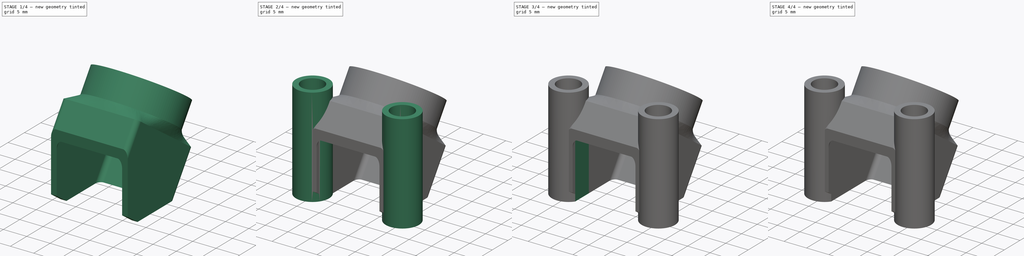
[diagram: build sequence overview — one tinted view per stage of 4, left to right]
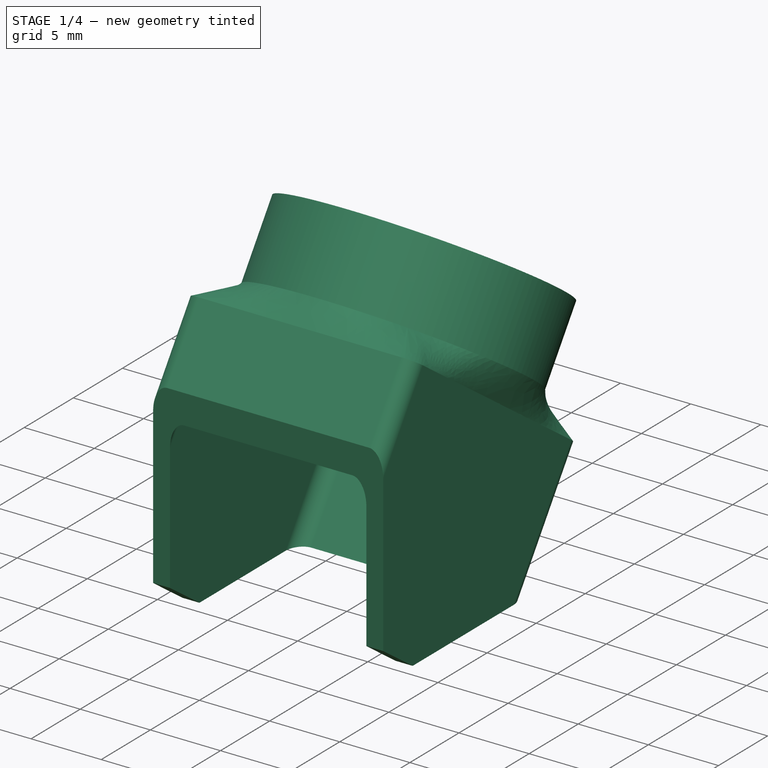
[diagram: stage 1 of 4 — iso view after this stage's code; geometry added in this stage tinted green]
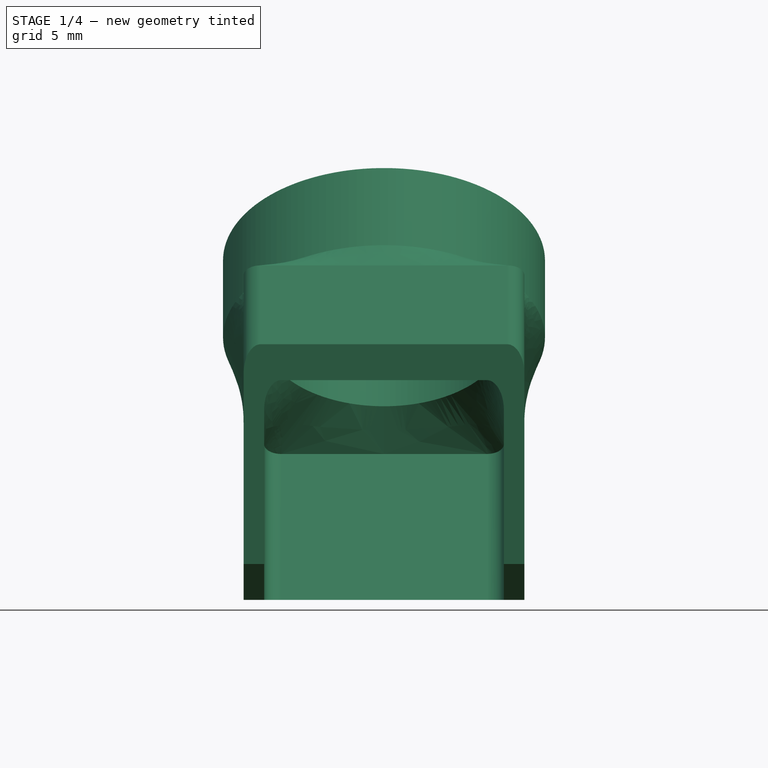
[diagram: stage 1 of 4 — front view after this stage's code; geometry added in this stage tinted green]
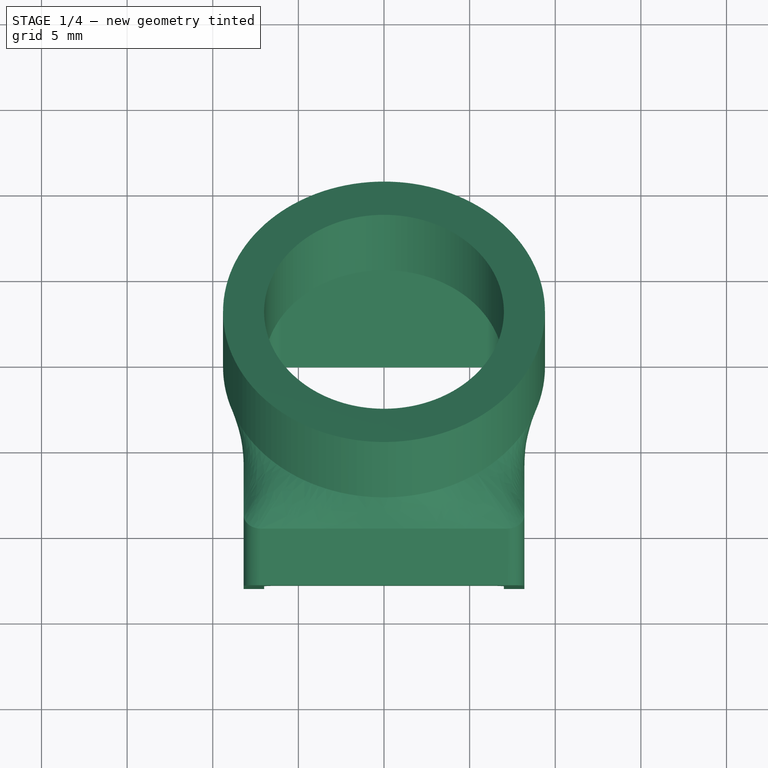
[diagram: stage 1 of 4 — top view after this stage's code; geometry added in this stage tinted green]
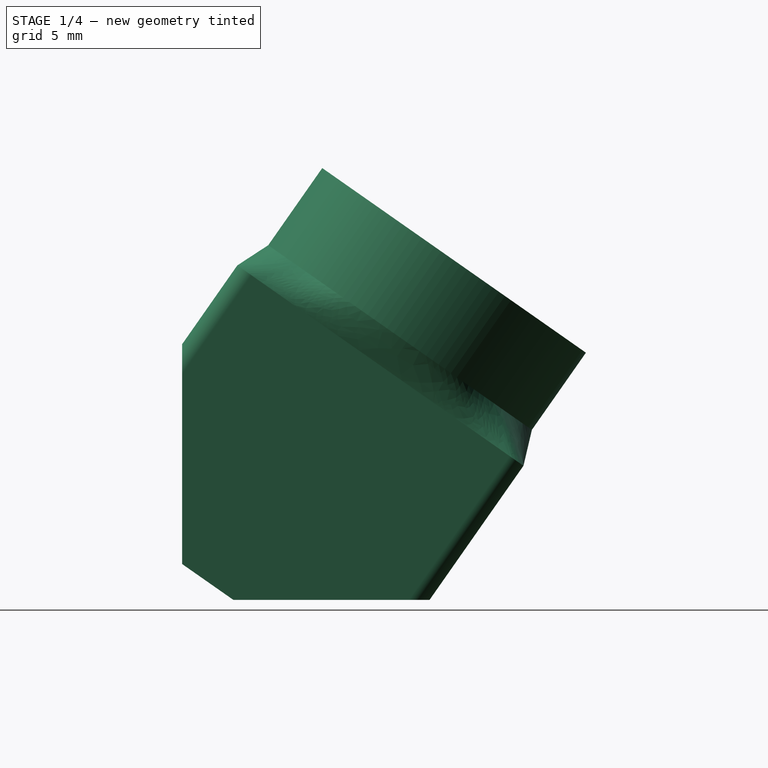
[diagram: stage 1 of 4 — right view after this stage's code; geometry added in this stage tinted green]
FCSTD DOCUMENT  (FreeCAD 0.20R29177 +426 (Git))
Label: mount_cam_nano90_M8lens
License: All rights reserved
LicenseURL: http://en.wikipedia.org/wiki/All_rights_reserved
objects: Sketcher::SketchObject×13, PartDesign::Pocket×6, PartDesign::AdditiveLoft×1, PartDesign::Pad×1, PartDesign::Chamfer×1, PartDesign::Body×1, Spreadsheet::Sheet×1
note: 32 computed .brp shape members not serialized (recipe doc carries the construction recipe); baked Part::Feature solids carry a one-line shape summary decoded from their .brp

FEATURE [Sketcher::SketchObject] Sketch  label="base"
  FullyConstrained = true
  MapMode = 5
  Support = -> [XY_Plane]
  sketch-geometry (2):
    g0: GeomPoint X=10 Y=0 Z=0
    g1: GeomPoint X=-10 Y=0 Z=0
  constraints (3):
    c: PointOnObject(g0,g-1)
    c: DistanceX(g1,g0) = 20
    c: Symmetric(g0,g1,g-1)
FEATURE [Sketcher::SketchObject] Sketch001  label="cam_dimensions"
  FullyConstrained = false
  MapMode = 5
  Placement = pos=(0,0,0) rot=(0.57735,0.57735,0.57735;2.0944rad)
  Support = -> [YZ_Plane]
  sketch-geometry (24):
    g0: LineSegment StartX=7.39443 StartY=22.4521 StartZ=0 EndX=17.2243 EndY=15.5692 EndZ=0
    g1: LineSegment StartX=-5.3874 StartY=9.42812 StartZ=0 EndX=9.35733 EndY=-0.896252 EndZ=0
    g2: LineSegment StartX=9.35733 StartY=-0.896252 StartZ=0 EndX=15.3799 EndY=7.70484 EndZ=0
    g3: LineSegment StartX=15.3799 StartY=7.70484 StartZ=0 EndX=0.635149 EndY=18.0292 EndZ=0
    g4: LineSegment StartX=0.635149 StartY=18.0292 StartZ=0 EndX=-5.3874 EndY=9.42812 EndZ=0
    g5: LineSegment StartX=8.00752 StartY=12.867 StartZ=0 EndX=12.3093 EndY=19.0107 EndZ=0
    g6: Circle CenterX=6 CenterY=10 CenterZ=0 NormalX=0 NormalY=0 NormalZ=1 AngleXU=0 Radius=1
    g7: LineSegment StartX=-20.7098 StartY=25 StartZ=0 EndX=19.2902 EndY=25 EndZ=0
    g8: LineSegment StartX=7.968 StartY=23.2713 StartZ=0 EndX=17.7978 EndY=16.3884 EndZ=0
    g9: LineSegment StartX=1.20873 StartY=18.8484 StartZ=0 EndX=15.9535 EndY=8.524 EndZ=0
    g10: GeomPoint X=15.9535 Y=8.524 Z=0
    g11: GeomPoint X=1.20873 Y=18.8484 Z=0
    g12: GeomPoint X=17.7978 Y=16.3884 Z=0
    g13: GeomPoint X=7.968 Y=23.2713 Z=0
    g14: LineSegment StartX=-8.04477 StartY=5.63301 StartZ=0 EndX=6.69997 EndY=-4.69137 EndZ=0
    g15: LineSegment StartX=9.35733 StartY=-0.896252 StartZ=0 EndX=6.69997 EndY=-4.69137 EndZ=0
    g16: GeomPoint X=6.69997 Y=-4.69137 Z=0
    g17: GeomPoint X=6.69997 Y=-4.69137 Z=0
    g18: GeomPoint X=-8.04477 Y=5.63301 Z=0
    g19: GeomPoint X=6 Y=10 Z=0
    g20: GeomPoint X=12.3093 Y=19.0107 Z=0
    g21: LineSegment StartX=4.81333 StartY=18.7659 StartZ=0 EndX=14.6432 EndY=11.883 EndZ=0
    g22: GeomPoint X=14.6432 Y=11.883 Z=0
    g23: GeomPoint X=4.81333 Y=18.7659 Z=0
  constraints (52):
    c: Coincident(g2,g1)
    c: Coincident(g3,g2)
    c: Coincident(g4,g3)
    c: Coincident(g4,g1)
    c: Perpendicular(g2,g3)
    c: Perpendicular(g1,g4)
    c: Perpendicular(g2,g1)
    c: Distance(g1) = 18
    c: Distance(g2) = 10.5
    c: Parallel(g3,g0)
    c: Perpendicular(g0,g5)
    c: Symmetric(g0,g0,g5)
    c: Symmetric(g2,g3,g5)
    c: Radius(g6) = 1
    c: Distance(g6,g1) = 7
    c: Distance(g6,g0) = 11
    c: Distance(g6,g2) = 9
    c: Angle(g-1,g2) = 0.959931
    c: Horizontal(g7)
    c: Distance(g7,g-1) = 25
    c: DistanceX(g-1,g6) = 6
    c: DistanceY(g-1,g6) = 10
    c: Distance(g0) = 12
    c: Parallel(g9,g3)
    c: Parallel(g3,g8)
    c: Equal(g0,g8)
    c: Distance(g8,g5) = 6
    c: Distance(g0,g8) = 1
    c: Distance(g3,g9) = 1
    c: Equal(g9,g3)
    c: Distance(g9,g5) = 9
    c: Coincident(g10,g9)
    c: Coincident(g11,g9)
    c: Coincident(g12,g8)
    c: Coincident(g13,g8)
    c: PointOnObject(g-1,g14)
    c: Parallel(g14,g1)
    c: Equal(g1,g14)
    c: Coincident(g15,g1)
    c: Coincident(g15,g14)
    c: Perpendicular(g15,g1)
    c: Coincident(g16,g14)
    c: Coincident(g17,g14)
    c: Coincident(g18,g14)
    c: Coincident(g19,g6)
    c: Distance(g7) = 40
    c: Coincident(g20,g5)
    c: Equal(g21,g0)
    c: Symmetric(g21,g21,g5)
    c: Distance(g21,g9) = 2
    c: Coincident(g22,g21)
    c: Coincident(g23,g21)
FEATURE [Sketcher::SketchObject] Sketch002  label="lens_plane"
  AttachmentOffset = pos=(0,0,0) rot=(1,0,0;1.5708rad)
  ExternalGeometry = -> [Sketch001]
  FullyConstrained = true
  MapMode = 47
  Placement = pos=(-3.4e-15,7.968,23.2713) rot=(0,0.953717,-0.300706;3.14159rad)
  Support = -> [Sketch001]
  expr: Constraints[0] = 0.4 + <<parameters>>.lens_dia_mm / 2
  expr: Constraints[1] = 0.4 + <<parameters>>.lens_dia_mm / 2 + <<parameters>>.lens_wall_mm
  sketch-geometry (2):
    g0: Circle CenterX=0 CenterY=6 CenterZ=0 NormalX=0 NormalY=0 NormalZ=1 AngleXU=0 Radius=9.4
    g1: Circle CenterX=0 CenterY=6 CenterZ=0 NormalX=0 NormalY=0 NormalZ=1 AngleXU=0 Radius=7
  constraints (5):
    c: Radius(g1) = 7
    c: Radius(g0) = 9.4
    c: Coincident(g1,g0)
    c: PointOnObject(g0,g-2)
    c: Distance(g-1,g0) = 6
FEATURE [Sketcher::SketchObject] Sketch003  label="body_top_plane"
  ExternalGeometry = -> [Sketch001]
  FullyConstrained = true
  MapMode = 49
  Placement = pos=(-3.9e-15,1.20873,18.8484) rot=(-0.287968,0.287968,0.913318;1.66134rad)
  Support = -> [Sketch001]
  expr: Constraints[18] = <<parameters>>.body_w_mm + <<parameters>>.body_wall_mm * 2
  expr: Constraints[19] = <<parameters>>.body_h_mm + <<parameters>>.body_wall_mm * 2
  expr: Constraints[38] = <<parameters>>.body_h_mm
  expr: Constraints[39] = <<parameters>>.body_w_mm
  expr: Constraints[54] = <<parameters>>.body_h_mm / 2
  sketch-geometry (24):
    g0: ArcOfCircle CenterX=-0.2 CenterY=7.2 CenterZ=0 NormalX=0 NormalY=0 NormalZ=1 AngleXU=0 Radius=1 StartAngle=1.5708 EndAngle=3.14159
    g1: LineSegment StartX=-0.2 StartY=8.2 StartZ=0 EndX=18.2 EndY=8.2 EndZ=0
    g2: ArcOfCircle CenterX=18.2 CenterY=7.2 CenterZ=0 NormalX=0 NormalY=0 NormalZ=1 AngleXU=0 Radius=1 StartAngle=0 EndAngle=1.5708
    g3: LineSegment StartX=19.2 StartY=7.2 StartZ=0 EndX=19.2 EndY=-7.2 EndZ=0
    g4: ArcOfCircle CenterX=18.2 CenterY=-7.2 CenterZ=0 NormalX=0 NormalY=0 NormalZ=1 AngleXU=0 Radius=1 StartAngle=4.71239 EndAngle=6.28319
    g5: LineSegment StartX=18.2 StartY=-8.2 StartZ=0 EndX=-0.2 EndY=-8.2 EndZ=0
    g6: ArcOfCircle CenterX=-0.2 CenterY=-7.2 CenterZ=0 NormalX=0 NormalY=0 NormalZ=1 AngleXU=0 Radius=1 StartAngle=3.14159 EndAngle=4.71239
    g7: LineSegment StartX=-1.2 StartY=-7.2 StartZ=0 EndX=-1.2 EndY=7.2 EndZ=0
    g8: GeomPoint X=19.2 Y=-8.2 Z=0
    g9: ArcOfCircle CenterX=1 CenterY=6 CenterZ=0 NormalX=0 NormalY=0 NormalZ=1 AngleXU=0 Radius=1 StartAngle=1.5708 EndAngle=3.14159
    g10: LineSegment StartX=1 StartY=7 StartZ=0 EndX=17 EndY=7 EndZ=0
    g11: ArcOfCircle CenterX=17 CenterY=6 CenterZ=0 NormalX=0 NormalY=0 NormalZ=1 AngleXU=0 Radius=1 StartAngle=3e-16 EndAngle=1.5708
    g12: LineSegment StartX=18 StartY=6 StartZ=0 EndX=18 EndY=-6 EndZ=0
    g13: ArcOfCircle CenterX=17 CenterY=-6 CenterZ=0 NormalX=0 NormalY=0 NormalZ=1 AngleXU=0 Radius=1 StartAngle=4.71239 EndAngle=6.28319
    g14: LineSegment StartX=17 StartY=-7 StartZ=0 EndX=1 EndY=-7 EndZ=0
    g15: ArcOfCircle CenterX=1 CenterY=-6 CenterZ=0 NormalX=0 NormalY=0 NormalZ=1 AngleXU=0 Radius=1 StartAngle=3.14159 EndAngle=4.71239
    g16: LineSegment StartX=0 StartY=-6 StartZ=0 EndX=0 EndY=6 EndZ=0
    g17: GeomPoint X=18 Y=-7 Z=0
    g18: LineSegment StartX=17 StartY=6 StartZ=0 EndX=1 EndY=-6 EndZ=0
    g19: LineSegment StartX=1 StartY=6 StartZ=0 EndX=17 EndY=-6 EndZ=0
    g20: LineSegment StartX=-0.2 StartY=-7.2 StartZ=0 EndX=18.2 EndY=7.2 EndZ=0
    g21: LineSegment StartX=-0.2 StartY=7.2 StartZ=0 EndX=18.2 EndY=-7.2 EndZ=0
    g22: GeomPoint X=9 Y=0 Z=0
    g23: GeomPoint X=9 Y=0 Z=0
  constraints (55):
    c: Tangent(g0,g1) = 1.5708
    c: Tangent(g1,g2) = 1.5708
    c: Tangent(g2,g3) = 1.5708
    c: Tangent(g3,g4) = 1.5708
    c: Tangent(g4,g5) = 1.5708
    c: Tangent(g5,g6) = 1.5708
    c: Tangent(g6,g7) = 1.5708
    c: Tangent(g7,g0) = 1.5708
    c: Horizontal(g1)
    c: Horizontal(g5)
    c: Vertical(g3)
    c: Vertical(g7)
    c: Equal(g0,g2)
    c: Equal(g2,g4)
    c: Equal(g4,g6)
    c: PointOnObject(g8,g3)
    c: PointOnObject(g8,g5)
    c: Radius(g4) = 1
    c: Distance(g1,g4) = 16.4
    c: Distance(g3,g6) = 20.4
    c: Tangent(g9,g10) = 1.5708
    c: Tangent(g10,g11) = 1.5708
    c: Tangent(g11,g12) = 1.5708
    c: Tangent(g12,g13) = 1.5708
    c: Tangent(g13,g14) = 1.5708
    c: Tangent(g14,g15) = 1.5708
    c: Tangent(g15,g16) = 1.5708
    c: Tangent(g16,g9) = 1.5708
    c: Horizontal(g10)
    c: Horizontal(g14)
    c: Vertical(g12)
    c: Vertical(g16)
    c: Equal(g9,g11)
    c: Equal(g11,g13)
    c: Equal(g13,g15)
    c: PointOnObject(g17,g12)
    c: PointOnObject(g17,g14)
    c: Radius(g13) = 1
    c: Distance(g12,g15) = 18
    c: Distance(g13,g10) = 14
    c: Coincident(g18,g11)
    c: Coincident(g18,g15)
    c: Coincident(g19,g9)
    c: Coincident(g19,g13)
    c: Coincident(g20,g6)
    c: Coincident(g20,g2)
    c: Coincident(g21,g0)
    c: Coincident(g21,g4)
    c: PointOnObject(g22,g21)
    c: PointOnObject(g23,g18)
    c: PointOnObject(g22,g20)
    c: PointOnObject(g23,g19)
    c: Coincident(g22,g23)
    c: PointOnObject(g22,g-1)
    c: Distance(g-1,g22) = 9
FEATURE [Sketcher::SketchObject] Sketch004  label="body_bot_plane"
  ExternalGeometry = -> [Sketch001]
  FullyConstrained = true
  MapMode = 49
  Placement = pos=(-3e-15,-8.04477,5.63301) rot=(-0.287968,0.287968,0.913318;1.66134rad)
  Support = -> [Sketch001]
  expr: Constraints[18] = <<parameters>>.body_w_mm + <<parameters>>.body_wall_mm * 2
  expr: Constraints[19] = <<parameters>>.body_h_mm + <<parameters>>.body_wall_mm * 2
  expr: Constraints[38] = <<parameters>>.body_h_mm
  expr: Constraints[39] = <<parameters>>.body_w_mm
  expr: Constraints[54] = <<parameters>>.body_h_mm / 2
  sketch-geometry (24):
    g0: ArcOfCircle CenterX=-0.2 CenterY=7.2 CenterZ=0 NormalX=0 NormalY=0 NormalZ=1 AngleXU=0 Radius=1 StartAngle=1.5708 EndAngle=3.14159
    g1: LineSegment StartX=-0.2 StartY=8.2 StartZ=0 EndX=18.2 EndY=8.2 EndZ=0
    g2: ArcOfCircle CenterX=18.2 CenterY=7.2 CenterZ=0 NormalX=0 NormalY=0 NormalZ=1 AngleXU=0 Radius=1 StartAngle=2e-16 EndAngle=1.5708
    g3: LineSegment StartX=19.2 StartY=7.2 StartZ=0 EndX=19.2 EndY=-7.2 EndZ=0
    g4: ArcOfCircle CenterX=18.2 CenterY=-7.2 CenterZ=0 NormalX=0 NormalY=0 NormalZ=1 AngleXU=0 Radius=1 StartAngle=4.71239 EndAngle=6.28319
    g5: LineSegment StartX=18.2 StartY=-8.2 StartZ=0 EndX=-0.2 EndY=-8.2 EndZ=0
    g6: ArcOfCircle CenterX=-0.2 CenterY=-7.2 CenterZ=0 NormalX=0 NormalY=0 NormalZ=1 AngleXU=0 Radius=1 StartAngle=3.14159 EndAngle=4.71239
    g7: LineSegment StartX=-1.2 StartY=-7.2 StartZ=0 EndX=-1.2 EndY=7.2 EndZ=0
    g8: GeomPoint X=19.2 Y=-8.2 Z=0
    g9: ArcOfCircle CenterX=1 CenterY=6 CenterZ=0 NormalX=0 NormalY=0 NormalZ=1 AngleXU=0 Radius=1 StartAngle=1.5708 EndAngle=3.14159
    g10: LineSegment StartX=1 StartY=7 StartZ=0 EndX=17 EndY=7 EndZ=0
    g11: ArcOfCircle CenterX=17 CenterY=6 CenterZ=0 NormalX=0 NormalY=0 NormalZ=1 AngleXU=0 Radius=1 StartAngle=4e-16 EndAngle=1.5708
    g12: LineSegment StartX=18 StartY=6 StartZ=0 EndX=18 EndY=-6 EndZ=0
    g13: ArcOfCircle CenterX=17 CenterY=-6 CenterZ=0 NormalX=0 NormalY=0 NormalZ=1 AngleXU=0 Radius=1 StartAngle=4.71239 EndAngle=6.28319
    g14: LineSegment StartX=17 StartY=-7 StartZ=0 EndX=1 EndY=-7 EndZ=0
    g15: ArcOfCircle CenterX=1 CenterY=-6 CenterZ=0 NormalX=0 NormalY=0 NormalZ=1 AngleXU=0 Radius=1 StartAngle=3.14159 EndAngle=4.71239
    g16: LineSegment StartX=0 StartY=-6 StartZ=0 EndX=0 EndY=6 EndZ=0
    g17: GeomPoint X=18 Y=-7 Z=0
    g18: LineSegment StartX=17 StartY=-6 StartZ=0 EndX=1 EndY=6 EndZ=0
    g19: LineSegment StartX=-0.2 StartY=-7.2 StartZ=0 EndX=18.2 EndY=7.2 EndZ=0
    g20: LineSegment StartX=17 StartY=6 StartZ=0 EndX=1 EndY=-6 EndZ=0
    g21: LineSegment StartX=18.2 StartY=-7.2 StartZ=0 EndX=-0.2 EndY=7.2 EndZ=0
    g22: GeomPoint X=9 Y=0 Z=0
    g23: GeomPoint X=9 Y=0 Z=0
  constraints (55):
    c: Tangent(g0,g1) = 1.5708
    c: Tangent(g1,g2) = 1.5708
    c: Tangent(g2,g3) = 1.5708
    c: Tangent(g3,g4) = 1.5708
    c: Tangent(g4,g5) = 1.5708
    c: Tangent(g5,g6) = 1.5708
    c: Tangent(g6,g7) = 1.5708
    c: Tangent(g7,g0) = 1.5708
    c: Horizontal(g1)
    c: Horizontal(g5)
    c: Vertical(g3)
    c: Vertical(g7)
    c: Equal(g0,g2)
    c: Equal(g2,g4)
    c: Equal(g4,g6)
    c: PointOnObject(g8,g3)
    c: PointOnObject(g8,g5)
    c: Radius(g4) = 1
    c: Distance(g1,g4) = 16.4
    c: Distance(g3,g6) = 20.4
    c: Tangent(g9,g10) = 1.5708
    c: Tangent(g10,g11) = 1.5708
    c: Tangent(g11,g12) = 1.5708
    c: Tangent(g12,g13) = 1.5708
    c: Tangent(g13,g14) = 1.5708
    c: Tangent(g14,g15) = 1.5708
    c: Tangent(g15,g16) = 1.5708
    c: Tangent(g16,g9) = 1.5708
    c: Horizontal(g10)
    c: Horizontal(g14)
    c: Vertical(g12)
    c: Vertical(g16)
    c: Equal(g9,g11)
    c: Equal(g11,g13)
    c: Equal(g13,g15)
    c: PointOnObject(g17,g12)
    c: PointOnObject(g17,g14)
    c: Radius(g13) = 1
    c: Distance(g12,g15) = 18
    c: Distance(g13,g10) = 14
    c: Coincident(g18,g13)
    c: Coincident(g18,g9)
    c: Coincident(g19,g6)
    c: Coincident(g19,g2)
    c: Coincident(g20,g11)
    c: Coincident(g20,g15)
    c: Coincident(g21,g4)
    c: Coincident(g21,g0)
    c: PointOnObject(g22,g18)
    c: PointOnObject(g23,g19)
    c: PointOnObject(g23,g21)
    c: PointOnObject(g22,g20)
    c: Coincident(g23,g22)
    c: PointOnObject(g22,g-1)
    c: Distance(g22,g-1) = 9
FEATURE [Sketcher::SketchObject] Sketch005  label="lens_plate_2"
  FullyConstrained = true
  MapMode = 49
  Placement = pos=(-3.1e-15,4.81333,18.7659) rot=(-0.287968,0.287968,0.913318;1.66134rad)
  Support = -> [Sketch001]
  expr: Constraints[1] = 0.4 + <<parameters>>.lens_dia_mm / 2 + <<parameters>>.lens_wall_mm
  expr: Constraints[2] = 0.4 + <<parameters>>.lens_dia_mm / 2
  sketch-geometry (2):
    g0: Circle CenterX=6 CenterY=0 CenterZ=0 NormalX=0 NormalY=0 NormalZ=1 AngleXU=0 Radius=9.4
    g1: Circle CenterX=6 CenterY=0 CenterZ=0 NormalX=0 NormalY=0 NormalZ=1 AngleXU=0 Radius=7
  constraints (5):
    c: Coincident(g1,g0)
    c: Radius(g0) = 9.4
    c: Radius(g1) = 7
    c: PointOnObject(g0,g-1)
    c: Distance(g0,g-1) = 6
FEATURE [PartDesign::AdditiveLoft] AdditiveLoft
  Closed = false
  Placement = pos=(0,0,0) rot=(0.57735,0.57735,0.57735;2.0944rad)
  Profile = -> Sketch002
  Ruled = true
  Sections = -> [Sketch005,Sketch003,Sketch004]
FEATURE [Sketcher::SketchObject] Sketch006  label="mount_hole"
  ExternalGeometry = -> [Sketch001]
  FullyConstrained = true
  MapMode = 5
  Placement = pos=(-8.2,1e-16,-1.7e-15) rot=(0.57735,0.57735,-0.57735;4.18879rad)
  Support = -> [AdditiveLoft]
  sketch-geometry (1):
    g0: Circle CenterX=6 CenterY=-10 CenterZ=0 NormalX=0 NormalY=0 NormalZ=1 AngleXU=0 Radius=1
  constraints (2):
    c: Coincident(g0,g-3)
    c: Radius(g0) = 1
FEATURE [Sketcher::SketchObject] Sketch007
  FullyConstrained = true
  MapMode = 5
  Placement = pos=(0,0,0) rot=(0.57735,0.57735,0.57735;2.0944rad)
  Support = -> [YZ_Plane]
  sketch-geometry (6):
    g0: LineSegment StartX=20 StartY=0 StartZ=0 EndX=-3 EndY=0 EndZ=0
    g1: LineSegment StartX=-3 StartY=0 StartZ=0 EndX=-3 EndY=25 EndZ=0
    g2: LineSegment StartX=-3 StartY=25 StartZ=0 EndX=-23 EndY=25 EndZ=0
    g3: LineSegment StartX=-23 StartY=25 StartZ=0 EndX=-23 EndY=-10 EndZ=0
    g4: LineSegment StartX=-23 StartY=-10 StartZ=0 EndX=20 EndY=-10 EndZ=0
    g5: LineSegment StartX=20 StartY=-10 StartZ=0 EndX=20 EndY=0 EndZ=0
  constraints (18):
    c: PointOnObject(g0,g-1)
    c: PointOnObject(g0,g-1)
    c: Coincident(g0,g1)
    c: Vertical(g1)
    c: Coincident(g1,g2)
    c: Horizontal(g2)
    c: Coincident(g2,g3)
    c: Vertical(g3)
    c: Coincident(g3,g4)
    c: Horizontal(g4)
    c: Coincident(g4,g5)
    c: Coincident(g5,g0)
    c: Vertical(g5)
    c: Distance(g0,g-1) = 3
    c: Distance(g0,g4) = 10
    c: Distance(g-1,g0) = 20
    c: Distance(g0,g1) = 25
    c: Distance(g2) = 20
FEATURE [PartDesign::Pocket] Pocket001  label="cam_body_framing"
  BaseFeature = -> AdditiveLoft
  Direction = (-1,2e-16,-3e-16)
  Length = 5
  Length2 = 5
  Midplane = true
  Placement = pos=(0,0,0) rot=(0.57735,0.57735,0.57735;2.0944rad)
  Profile = -> Sketch007
  ReferenceAxis = -> Sketch007 [N_Axis]
  Type = 1
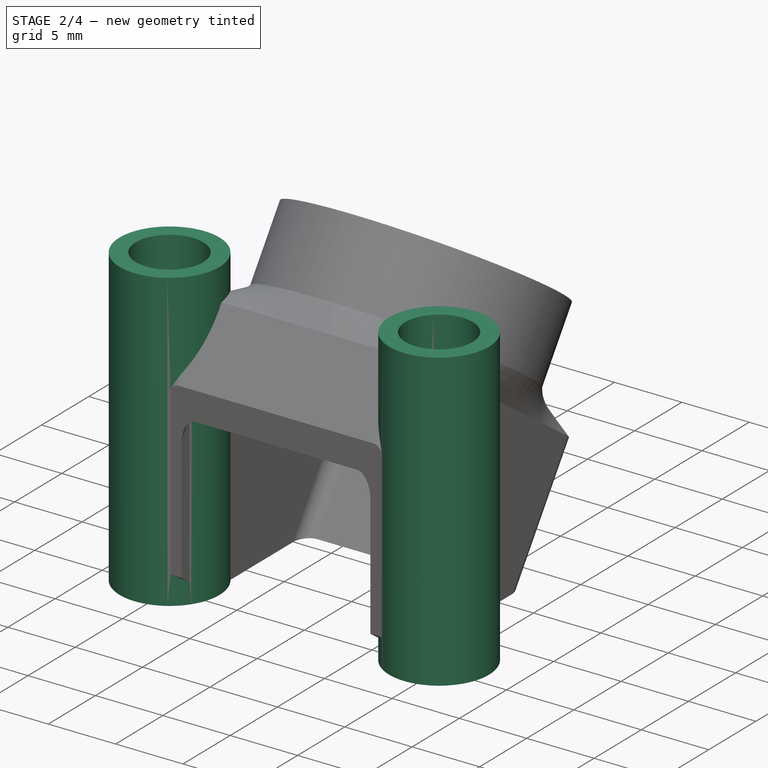
[diagram: stage 2 of 4 — iso view after this stage's code; geometry added in this stage tinted green]
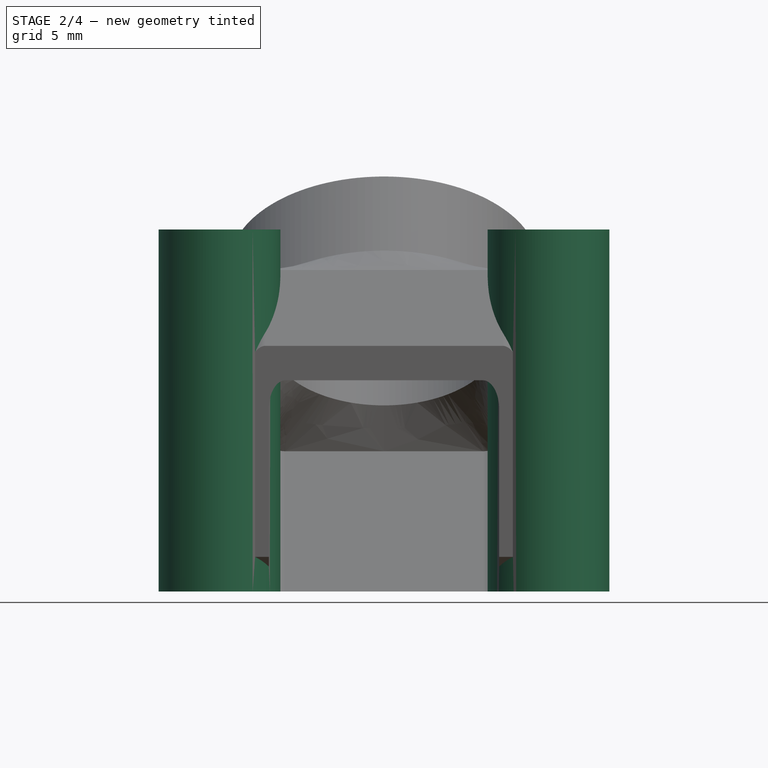
[diagram: stage 2 of 4 — front view after this stage's code; geometry added in this stage tinted green]
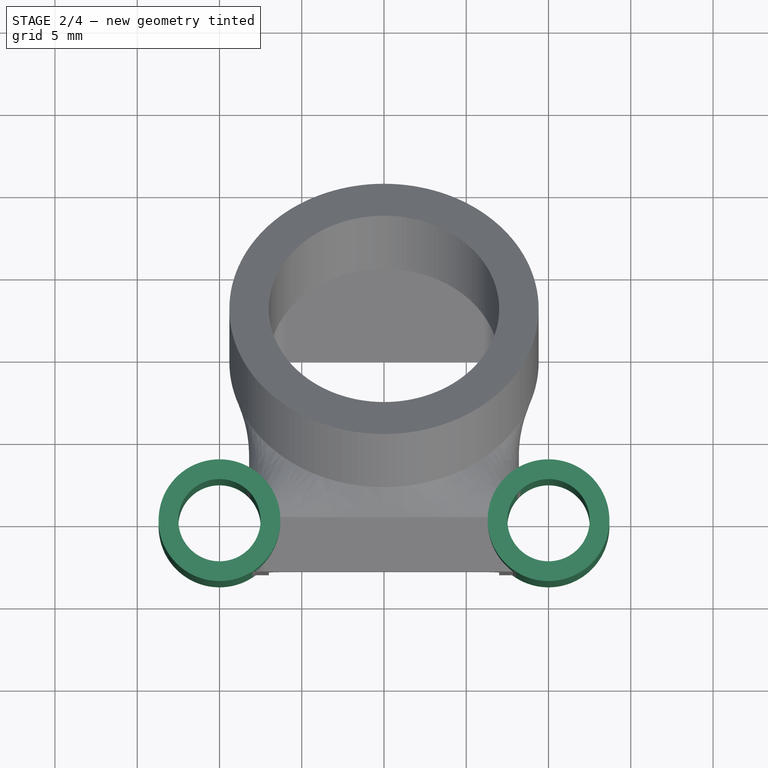
[diagram: stage 2 of 4 — top view after this stage's code; geometry added in this stage tinted green]
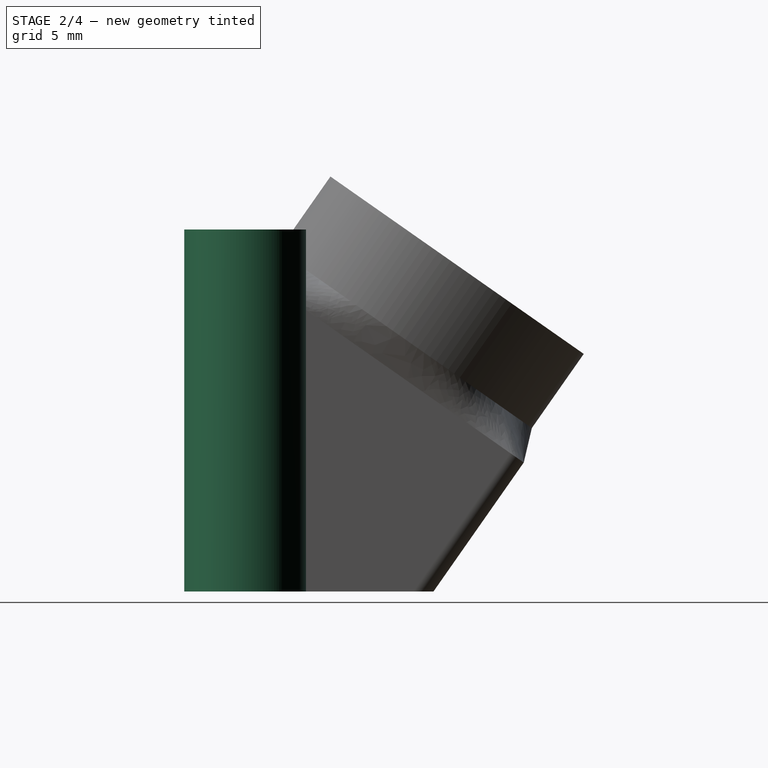
[diagram: stage 2 of 4 — right view after this stage's code; geometry added in this stage tinted green]
FEATURE [Sketcher::SketchObject] Sketch008
  ExternalGeometry = -> [Sketch,Pocket001]
  FullyConstrained = true
  MapMode = 5
  Support = -> [XY_Plane]
  sketch-geometry (4):
    g0: Circle CenterX=-10 CenterY=0 CenterZ=0 NormalX=0 NormalY=0 NormalZ=1 AngleXU=0 Radius=2.5
    g1: Circle CenterX=10 CenterY=0 CenterZ=0 NormalX=0 NormalY=0 NormalZ=1 AngleXU=0 Radius=2.5
    g2: Circle CenterX=-10 CenterY=0 CenterZ=0 NormalX=0 NormalY=0 NormalZ=1 AngleXU=0 Radius=3.7
    g3: Circle CenterX=10 CenterY=0 CenterZ=0 NormalX=0 NormalY=0 NormalZ=1 AngleXU=0 Radius=3.7
  constraints (8):
    c: Equal(g1,g0)
    c: Radius(g0) = 2.5
    c: Equal(g2,g3)
    c: Radius(g2) = 3.7
    c: Coincident(g-4,g3)
    c: Coincident(g-4,g1)
    c: Coincident(g-3,g2)
    c: Coincident(g-3,g0)
FEATURE [PartDesign::Pad] Pad  label="stand_mounts"
  BaseFeature = -> Pocket001
  Direction = (0,0,1)
  Length = 22
  Length2 = 10
  Placement = pos=(0,0,0) rot=(0.57735,0.57735,0.57735;2.0944rad)
  Profile = -> Sketch008
  ReferenceAxis = -> Sketch008 [N_Axis]
  Type = 0
FEATURE [Sketcher::SketchObject] Sketch009
  ExternalGeometry = -> [Sketch,Pad]
  FullyConstrained = false
  MapMode = 5
  Placement = pos=(0,0,0) rot=(0.707107,0.707107,0;3.14159rad)
  Support = -> [Pad]
  sketch-geometry (2):
    g0: Circle CenterX=1.8e-15 CenterY=-10 CenterZ=0 NormalX=0 NormalY=0 NormalZ=1 AngleXU=0 Radius=2.5
    g1: Circle CenterX=4.4e-15 CenterY=10 CenterZ=0 NormalX=0 NormalY=0 NormalZ=1 AngleXU=0 Radius=2.5
  constraints (1):
    c: Equal(g0,g-7)
FEATURE [PartDesign::Pocket] Pocket  label="stand_mounts_cleanup"
  BaseFeature = -> Pad
  Direction = (0,-1e-16,1)
  Length = 5
  Length2 = 5
  Placement = pos=(0,0,0) rot=(0.57735,0.57735,0.57735;2.0944rad)
  Profile = -> Sketch009
  ReferenceAxis = -> Sketch009 [N_Axis]
  Type = 1
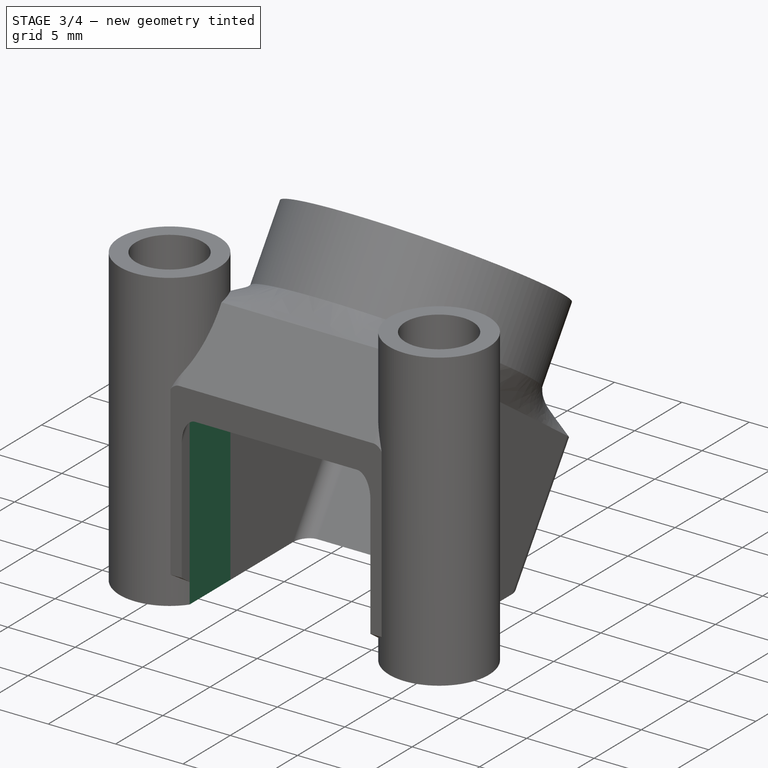
[diagram: stage 3 of 4 — iso view after this stage's code; geometry added in this stage tinted green]
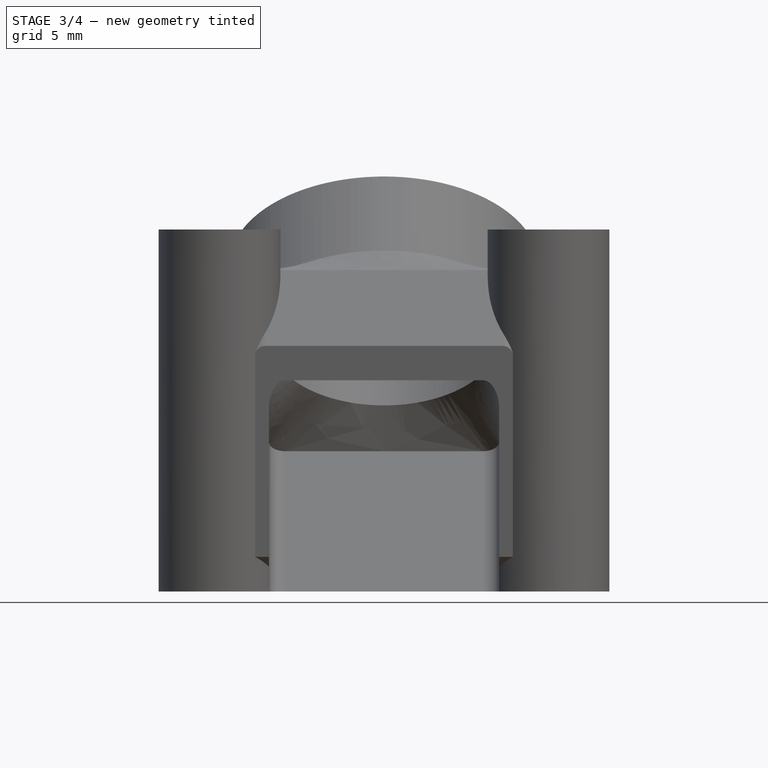
[diagram: stage 3 of 4 — front view after this stage's code; geometry added in this stage tinted green]
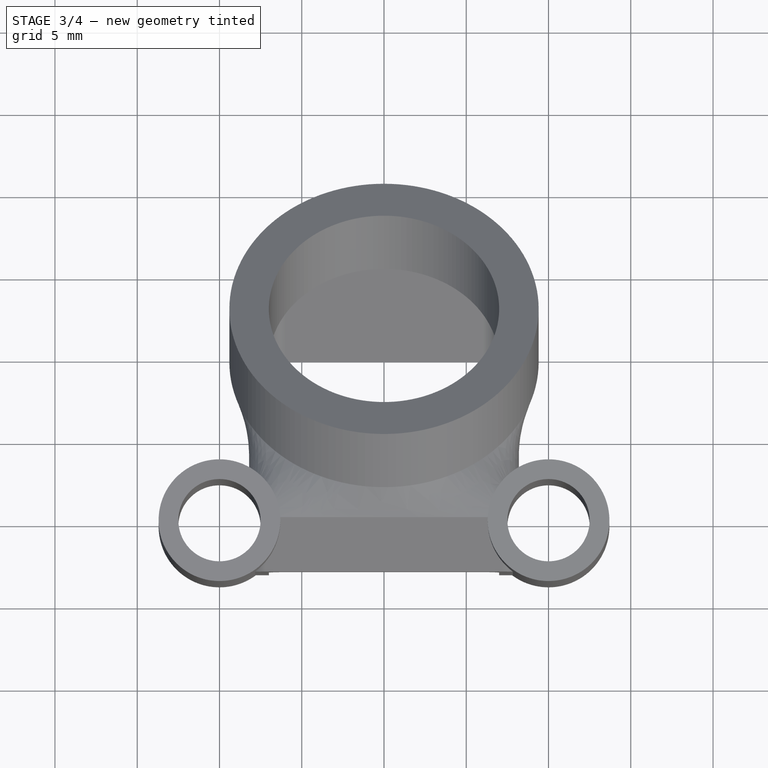
[diagram: stage 3 of 4 — top view after this stage's code; geometry added in this stage tinted green]
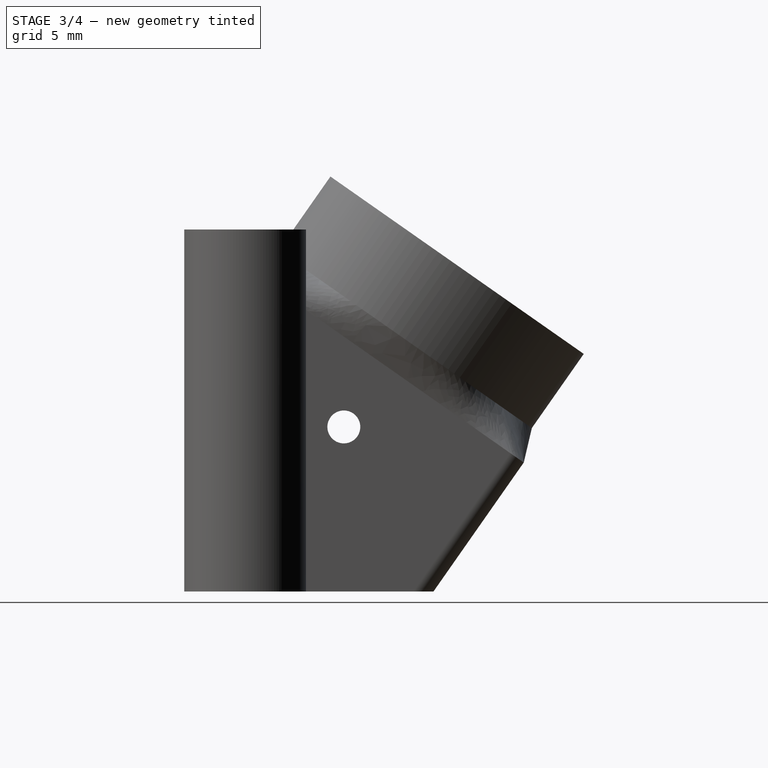
[diagram: stage 3 of 4 — right view after this stage's code; geometry added in this stage tinted green]
FEATURE [Sketcher::SketchObject] Sketch010
  ExternalGeometry = -> [Pocket,Sketch004]
  FullyConstrained = true
  MapMode = 2
  Placement = pos=(-3e-15,-8.04477,5.63301) rot=(-0.690162,0.690162,-0.217607;3.57013rad)
  Support = -> [Sketch004]
  sketch-geometry (6):
    g0: ArcOfCircle CenterX=-1 CenterY=-6 CenterZ=0 NormalX=0 NormalY=0 NormalZ=1 AngleXU=0 Radius=1 StartAngle=4.71239 EndAngle=6.2832
    g1: ArcOfCircle CenterX=-1 CenterY=6 CenterZ=0 NormalX=0 NormalY=0 NormalZ=1 AngleXU=0 Radius=1 StartAngle=2e-16 EndAngle=1.5708
    g2: LineSegment StartX=4.4e-15 StartY=6 StartZ=0 EndX=4.4e-15 EndY=-5.99999 EndZ=0
    g3: LineSegment StartX=-1 StartY=7 StartZ=0 EndX=-17 EndY=7 EndZ=0
    g4: LineSegment StartX=-17 StartY=7 StartZ=0 EndX=-17 EndY=-7 EndZ=0
    g5: LineSegment StartX=-17 StartY=-7 StartZ=0 EndX=-1 EndY=-7 EndZ=0
  constraints (14):
    c: Coincident(g0,g-6)
    c: Coincident(g0,g-6)
    c: Coincident(g1,g-5)
    c: Coincident(g1,g-4)
    c: Coincident(g2,g0)
    c: Vertical(g2)
    c: Horizontal(g3)
    c: Coincident(g4,g3)
    c: Vertical(g4)
    c: Coincident(g5,g4)
    c: Coincident(g5,g0)
    c: Coincident(g1,g3)
    c: Coincident(g4,g-3)
    c: Tangent(g2,g1) = 1.5708
FEATURE [PartDesign::Pocket] Pocket002  label="cam_pocket_cleanup"
  BaseFeature = -> Pocket
  Direction = (2e-16,0.573576,0.819152)
  Length = 15
  Length2 = 55
  Placement = pos=(0,0,0) rot=(0.57735,0.57735,0.57735;2.0944rad)
  Profile = -> Sketch010
  ReferenceAxis = -> Sketch010 [N_Axis]
  Type = 4
FEATURE [PartDesign::Pocket] Pocket003  label="screw_holes"
  BaseFeature = -> Pocket002
  Direction = (1,0,2e-16)
  Length = 5
  Length2 = 5
  Midplane = true
  Placement = pos=(0,0,0) rot=(0.57735,0.57735,0.57735;2.0944rad)
  Profile = -> Sketch006
  ReferenceAxis = -> Sketch006 [N_Axis]
  Type = 1
FEATURE [Sketcher::SketchObject] Sketch011
  ExternalGeometry = -> [Pocket003]
  FullyConstrained = true
  MapMode = 5
  Placement = pos=(8.2,4e-16,-2.1e-15) rot=(0.57735,0.57735,0.57735;2.0944rad)
  Support = -> [Pocket003]
  sketch-geometry (1):
    g0: Circle CenterX=6 CenterY=10 CenterZ=0 NormalX=0 NormalY=0 NormalZ=1 AngleXU=0 Radius=2
  constraints (2):
    c: Radius(g0) = 2
    c: Coincident(g-4,g0)
FEATURE [PartDesign::Pocket] Pocket004  label="screw_space_right"
  BaseFeature = -> Pocket003
  Direction = (-1,0,2e-16)
  Length = 5
  Length2 = 5
  Placement = pos=(0,0,0) rot=(0.57735,0.57735,0.57735;2.0944rad)
  Profile = -> Sketch011
  ReferenceAxis = -> Sketch011 [N_Axis]
  Reversed = true
  Type = 1
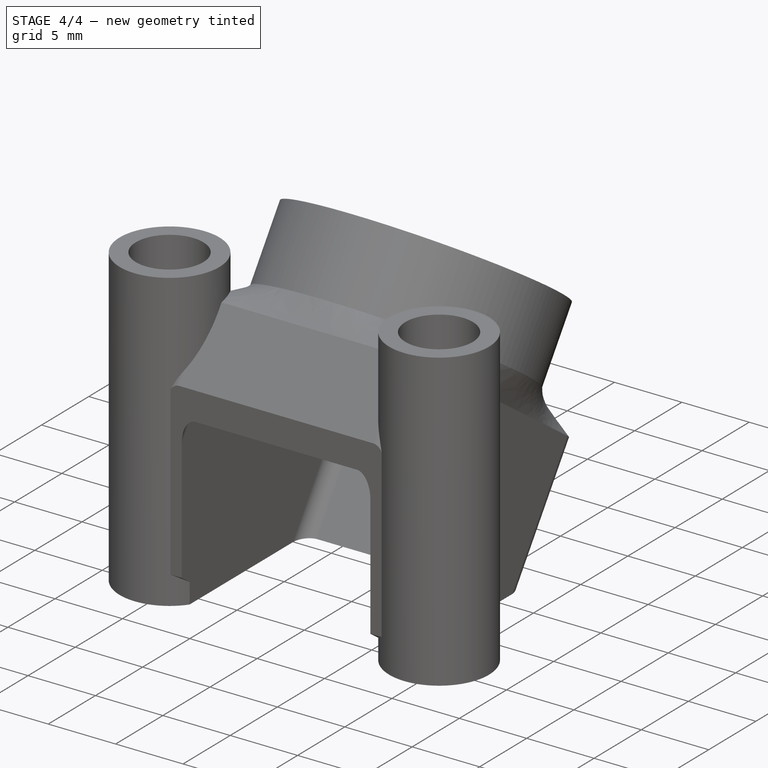
[diagram: stage 4 of 4 — iso view after this stage's code; geometry added in this stage tinted green]
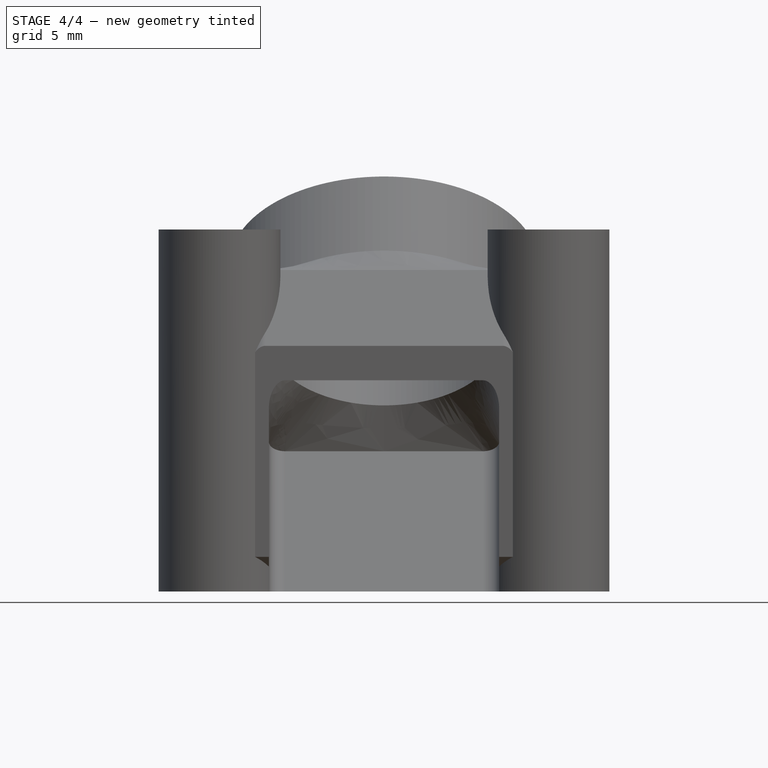
[diagram: stage 4 of 4 — front view after this stage's code; geometry added in this stage tinted green]
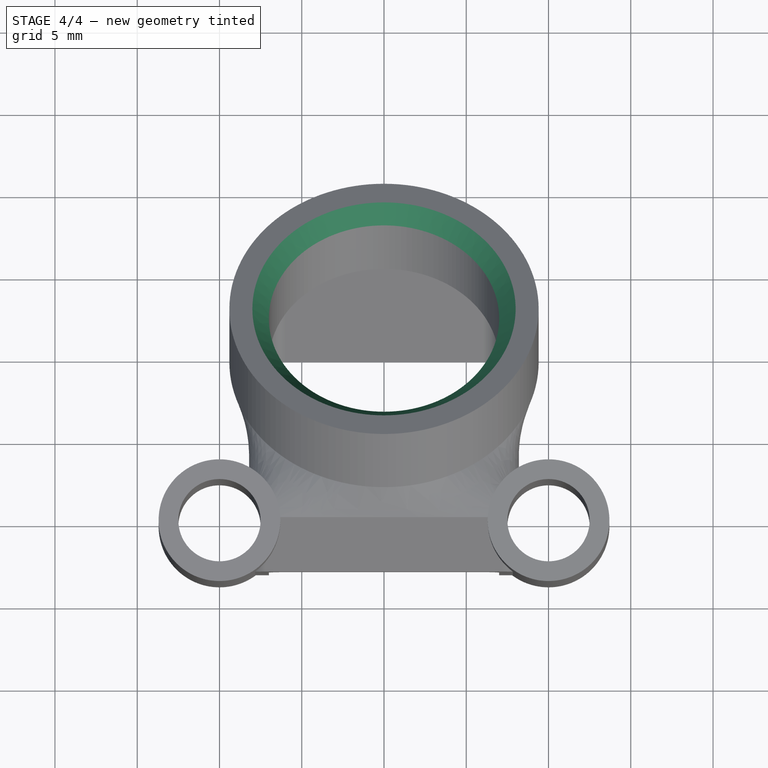
[diagram: stage 4 of 4 — top view after this stage's code; geometry added in this stage tinted green]
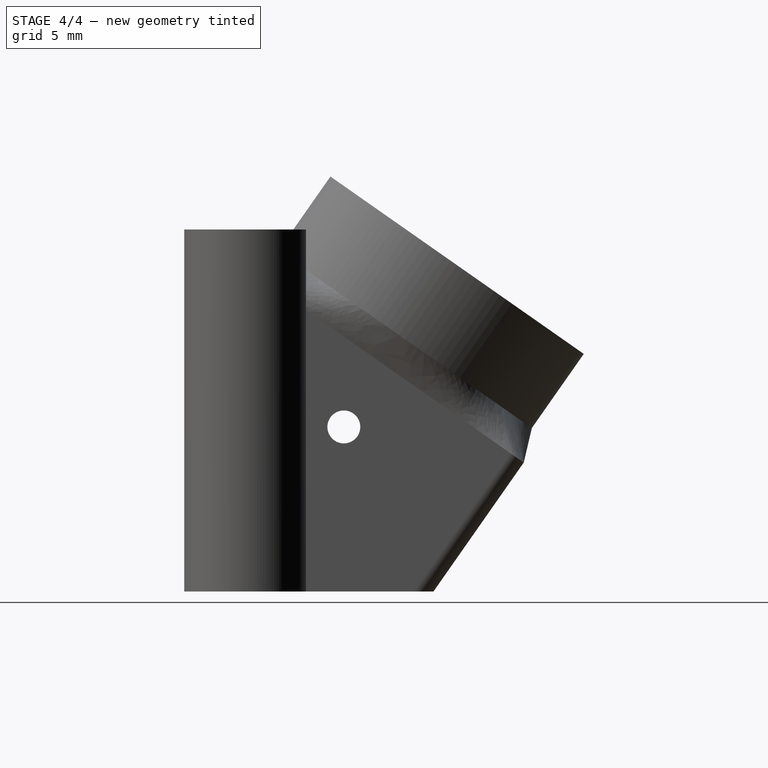
[diagram: stage 4 of 4 — right view after this stage's code; geometry added in this stage tinted green]
FEATURE [Sketcher::SketchObject] Sketch012
  ExternalGeometry = -> [Sketch001]
  FullyConstrained = true
  MapMode = 5
  Placement = pos=(-8.2,1e-16,3.7e-15) rot=(-0.57735,-0.57735,0.57735;2.0944rad)
  Support = -> [Pocket004]
  sketch-geometry (1):
    g0: Circle CenterX=6 CenterY=-10 CenterZ=0 NormalX=0 NormalY=0 NormalZ=1 AngleXU=0 Radius=2
  constraints (2):
    c: Coincident(g0,g-3)
    c: Radius(g0) = 2
FEATURE [PartDesign::Pocket] Pocket005  label="screw_space_left"
  BaseFeature = -> Pocket004
  Direction = (1,1e-16,-3e-16)
  Length = 5
  Length2 = 5
  Placement = pos=(0,0,0) rot=(0.57735,0.57735,0.57735;2.0944rad)
  Profile = -> Sketch012
  ReferenceAxis = -> Sketch012 [N_Axis]
  Reversed = true
  Type = 1
FEATURE [PartDesign::Chamfer] Chamfer  label="lens_chamfer"
  Angle = 45
  Base = -> Pocket005 [Edge16]
  BaseFeature = -> Pocket005
  ChamferType = 0
  FlipDirection = false
  Placement = pos=(0,0,0) rot=(0.57735,0.57735,0.57735;2.0944rad)
  Size = 1
  Size2 = 1
  SupportTransform = false
  UseAllEdges = false
FEATURE [PartDesign::Body] Body  label="hdzero_nano90_M8lens"
  Group = -> [Sketch,Sketch001,Sketch002,Sketch003,Sketch004,Sketch005,AdditiveLoft,Sketch006,Sketch007,Pocket001,Sketch008,Pad,Sketch009,Pocket,Sketch010,Pocket002,Pocket003,Sketch011,Pocket004,Sketch012,Pocket005,Chamfer]
  Origin = -> Origin
  Tip = -> Chamfer
FEATURE [Spreadsheet::Sheet] Spreadsheet  label="parameters"
  cells = A1=nozzle; B1=0.4; A2=lens_dia; B2(lens_dia_mm)=13.2; A3=lens_wall_perimeters; B3=6; A4=lesn_wall_mm; B4(lens_wall_mm)==B3 * B1; A5=body_h; B5(body_h_mm)=18; A6=body_w; B6(body_w_mm)=14; A7=body_wall_perimeters; B7=3; A8=body_wall_mm; B8(body_wall_mm)==B7 * B1
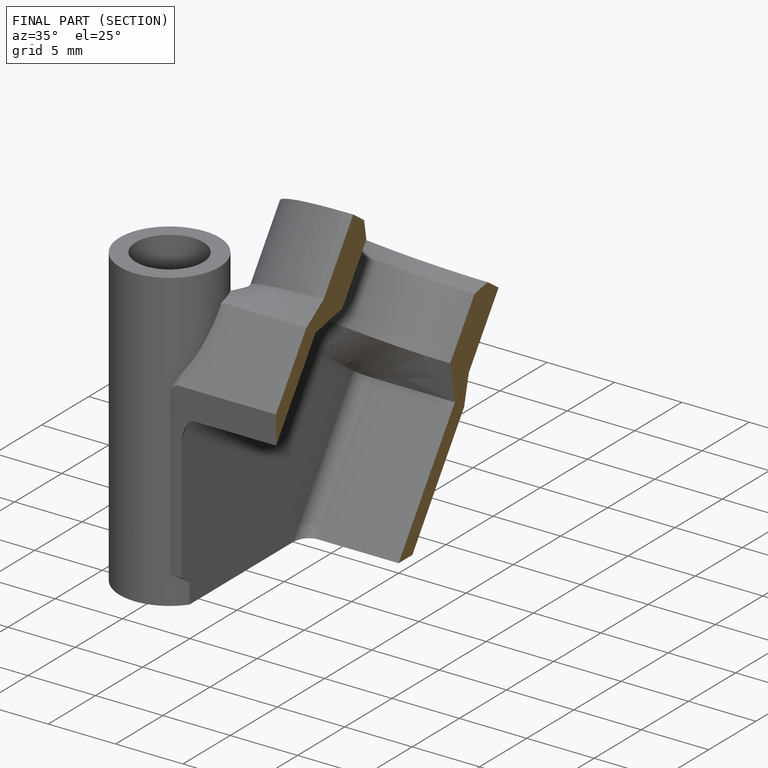
[diagram: finished part — half-section view (interior)]
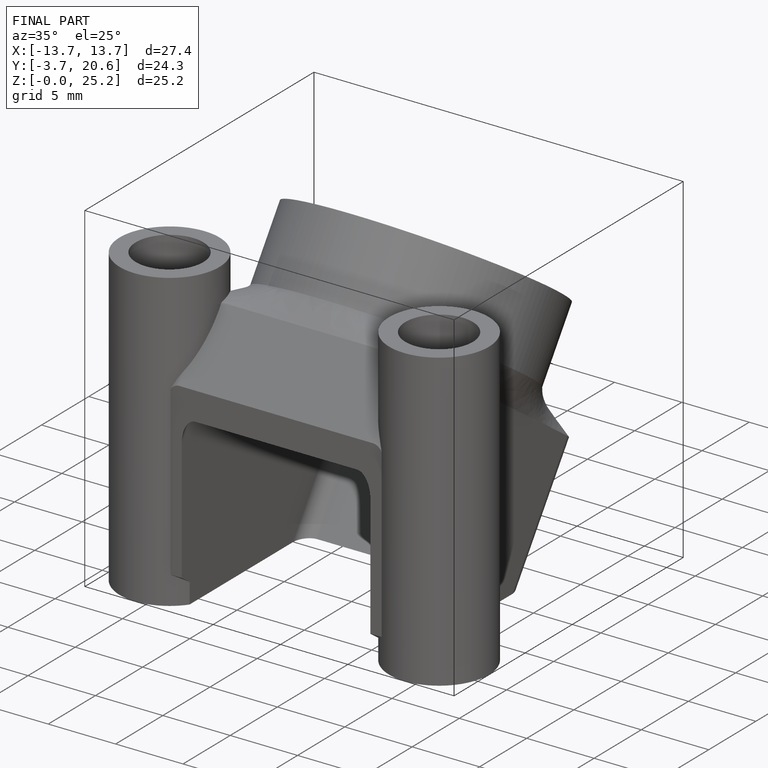
[diagram: finished part — iso view with bounding-box wireframe]
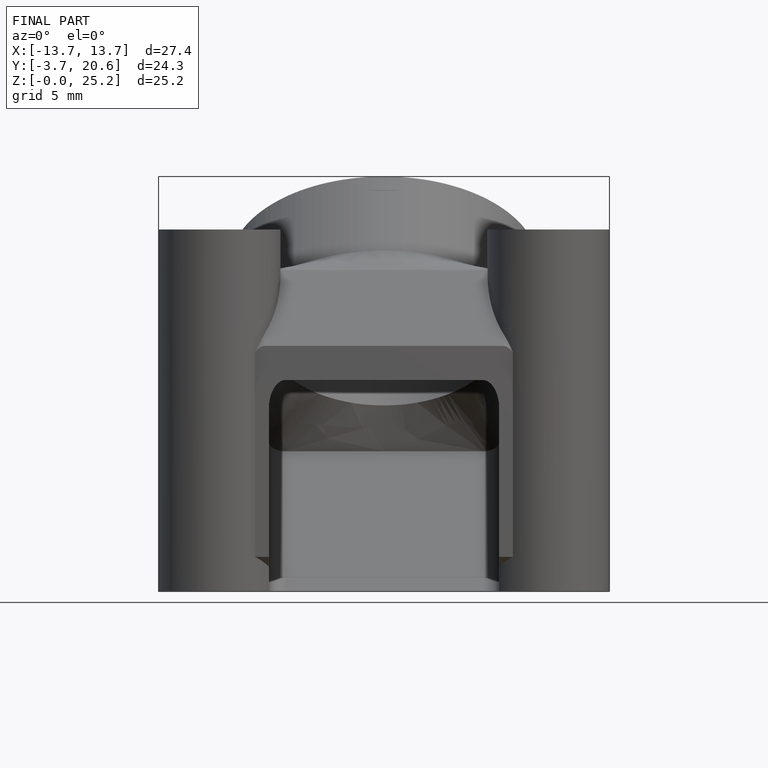
[diagram: finished part — front view with bounding-box wireframe]
